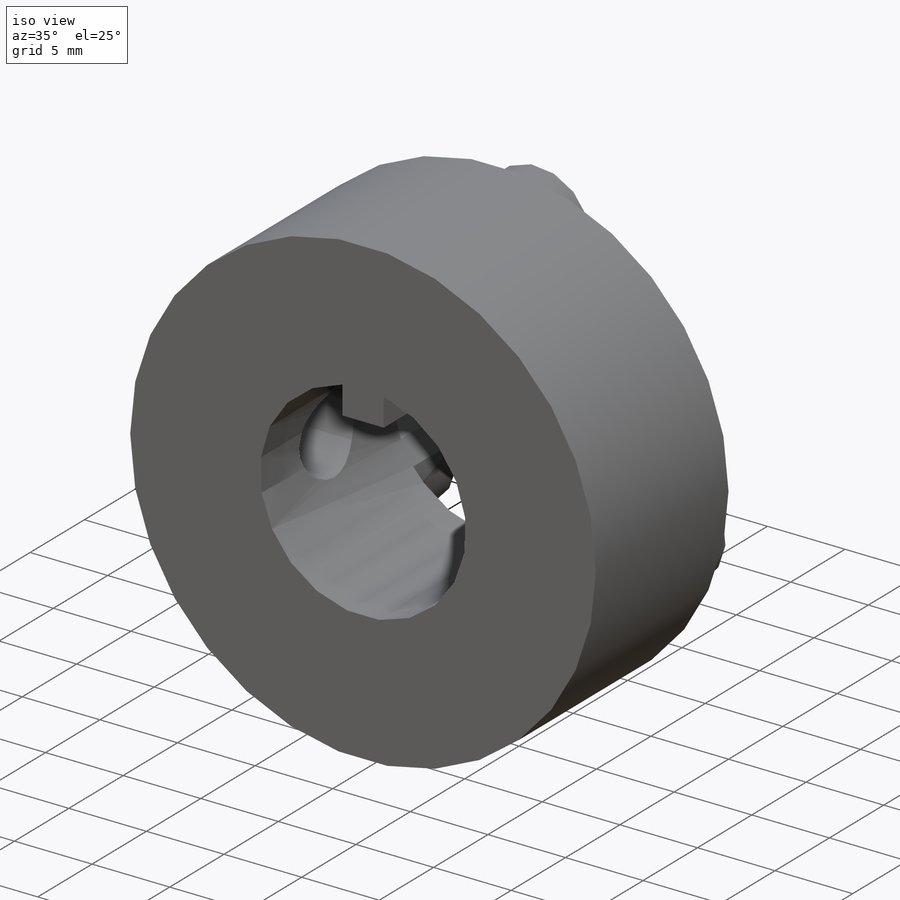
[diagram: iso view]
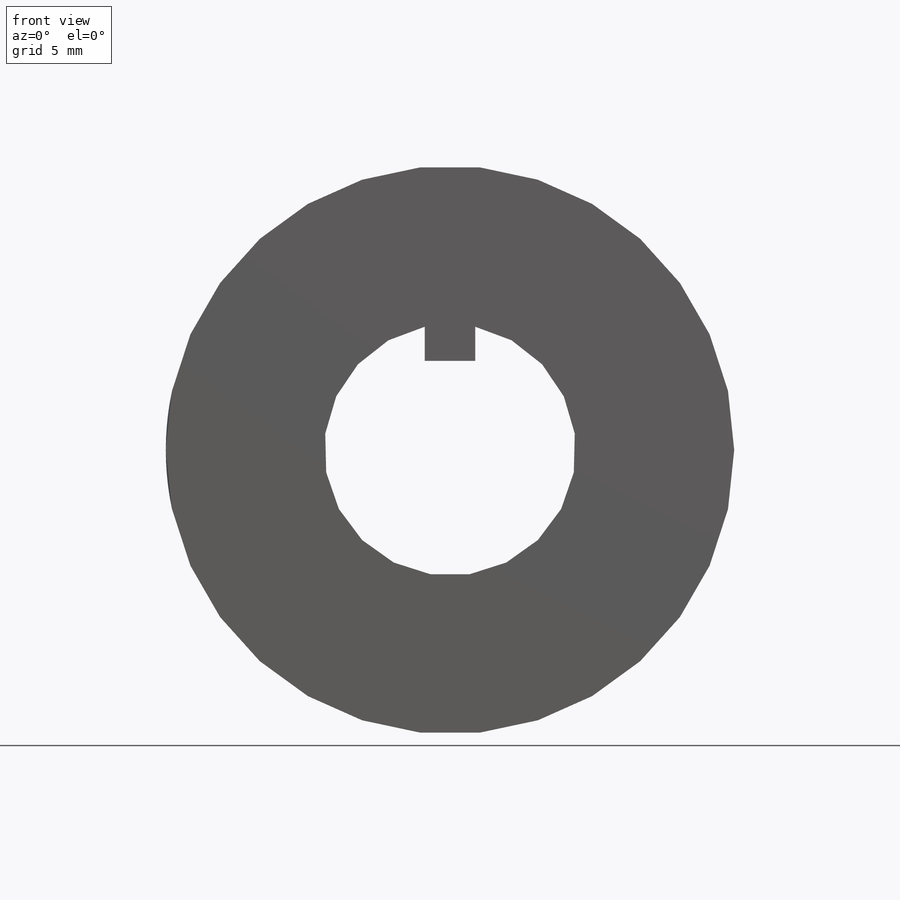
[diagram: front view]
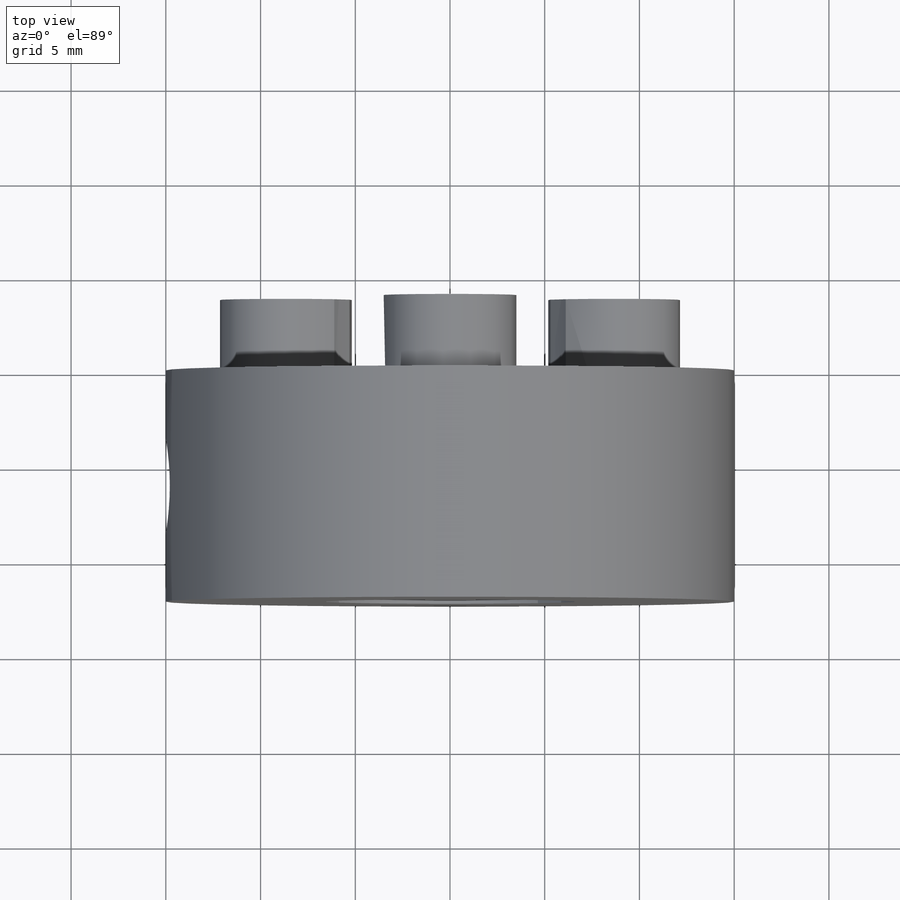
[diagram: top view]
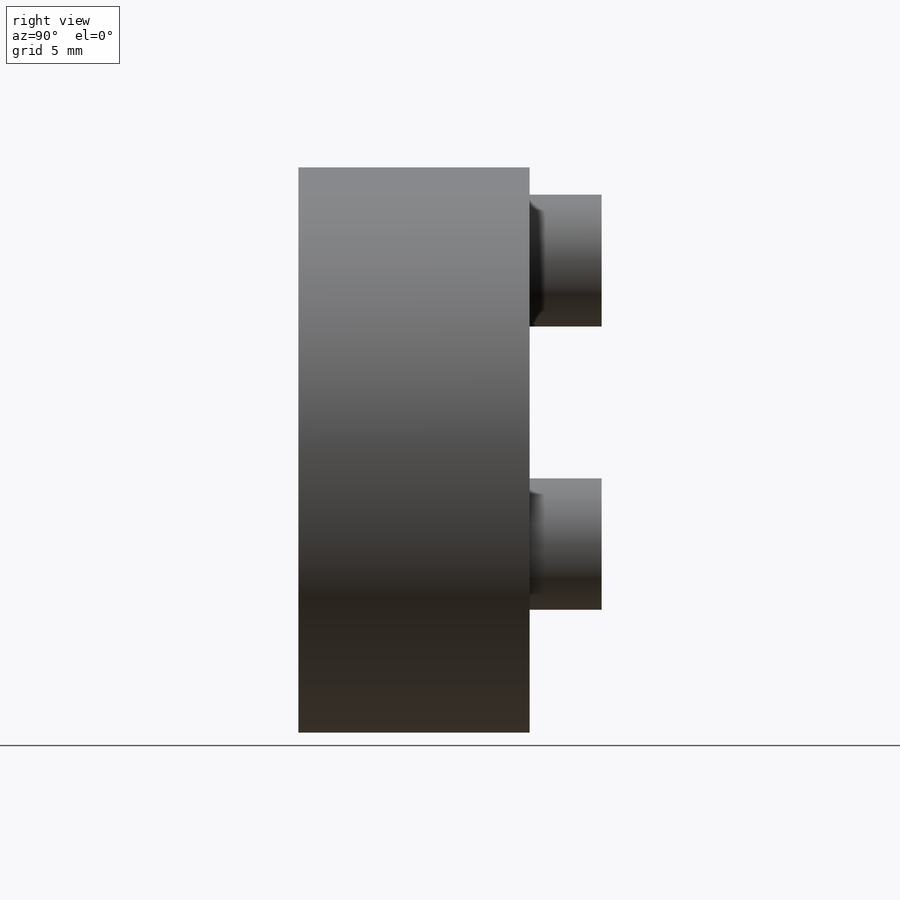
[diagram: right view]
SOLIDWORKS PART (.sldprt)
format: sldprt  version: not decoded by parser v0  size: 291,328 bytes
history: native  units: mm
features: sketch x4, material x1, extrude x1, cut_extrude x1, hole x1 (+13 scaffold rows collapsed)
feature tree (21):
  scaffold x13  (default folders/planes/origin — collapsed)
  material  "Material <not specified>"
  sketch  "GearFaceProfile"  dims[D1=30.0mm]
  extrude  "GearFaceExtrude"  Depth=12.21mm
  sketch  "Sketch1"  dims[c1.D1=19.0mm c1.D2=1.335mm c1.D3=1.335mm c1.D4=1.8mm c2.D2=1.8mm c2.D3=2.67mm]
  cut_extrude  "CenterSlot"  [1 undecoded]
  sketch  "Sketch2"  dims[c1.D1=7.0mm c1.D2=10.0mm c1.D3=10.0mm c2.D1=3.8mm]
  sketch  "SetScrewProfile"  dims[c1.D1=~2.864854mm c1.D3=5.04mm c2.D1=6.105mm c2.D2=15.0mm]
  hole  "SetScrewHole"  [1 undecoded]
decode coverage: 5 of 7 modeling features carry decoded parameters
note: ~ marks probable driven/reference dimensions
note: 2 parameter values undecoded
note: suppression state not decoded; provenance and decode notes live in map.json
